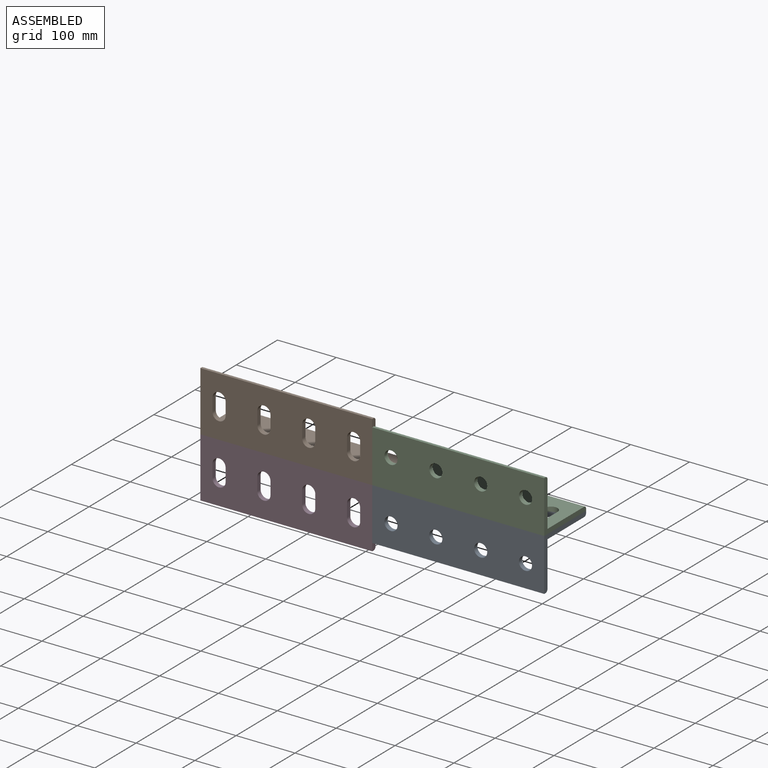
[diagram: assembled view]
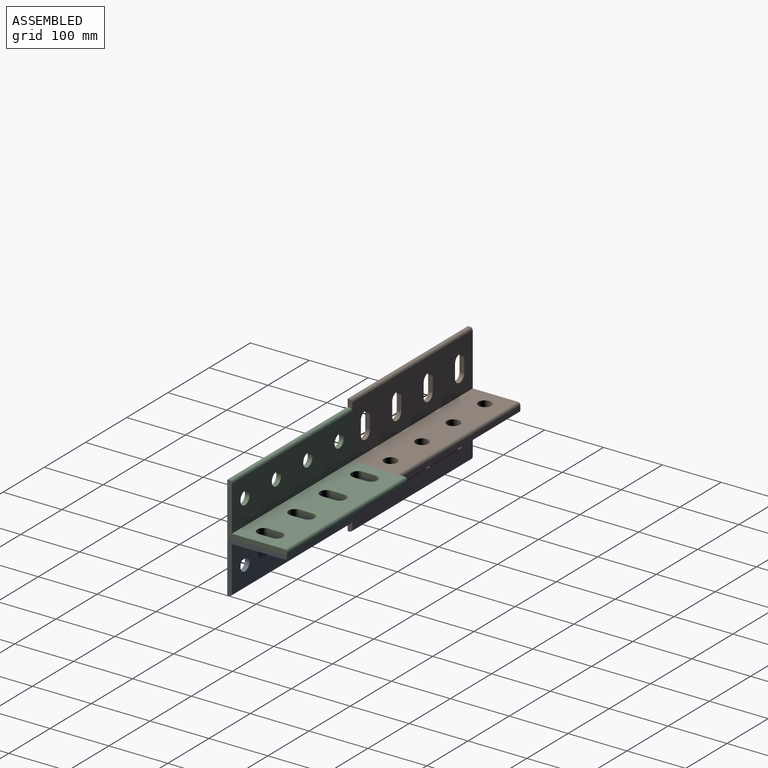
[diagram: assembled view, second angle]
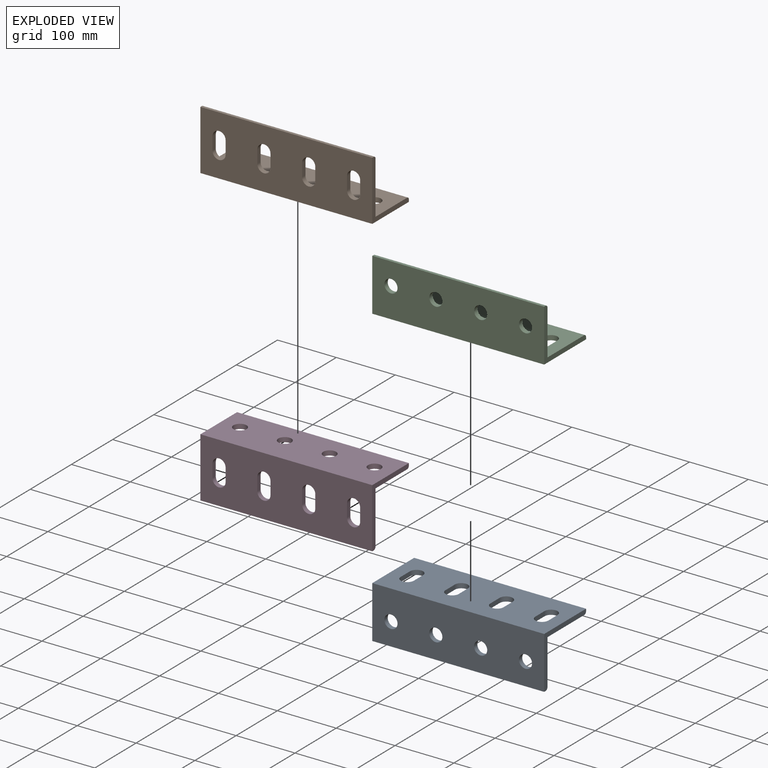
[diagram: exploded view]
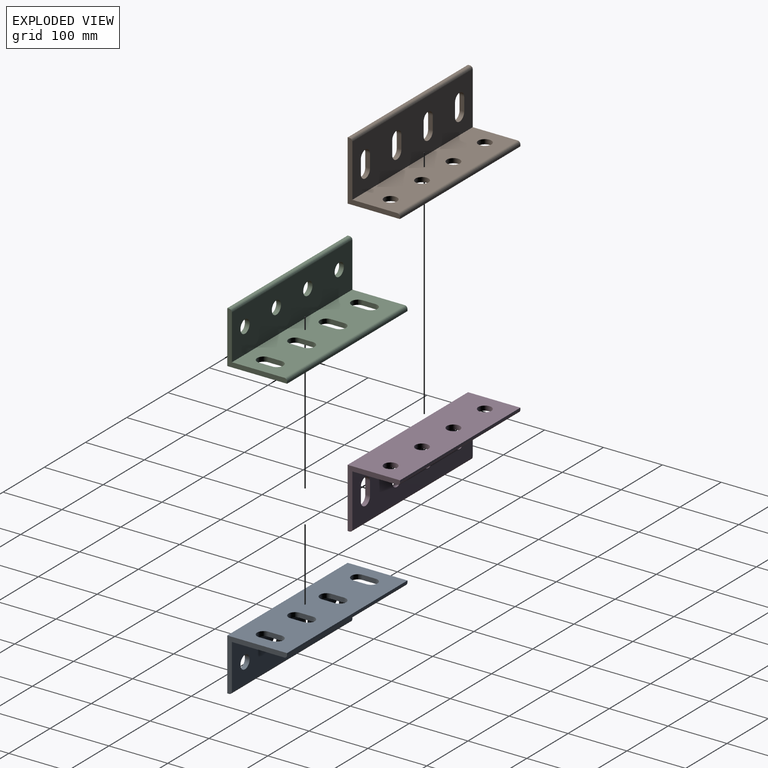
[diagram: exploded view, second angle]
ASSEMBLY  parts=4 mates=3
PART A: 30 faces, bbox 292.1x101.6x88.9 mm
  f0: plane 292.1x101.6mm, normal (0,0,1), area 26149.8mm2, adj f2,f5,f6,f7,f8,f9,f10,f11
  f1: plane 292.1x89.09mm, normal (0,0,-1), area 22495.7mm2, adj f4,f6,f7,f8,f9,f10,f11,f12
  f2: plane 292.1x88.9mm, normal (0,-1,0), area 24415.9mm2, adj f0,f3,f6,f7,f24,f25,f26,f27
  f3: plane 292.1x3.37mm, normal (0,0,-1), area 983.1mm2, adj f2,f6,f7,f28
  f4: plane 292.1x76.39mm, normal (0,1,0), area 20761.9mm2, adj f1,f6,f7,f24,f25,f26,f27,f28
  f5: plane 292.1x3.37mm, normal (0,1,0), area 983.1mm2, adj f0,f6,f7,f29
  f6: plane 101.6x88.9mm, normal (1,0,0), area 1440.1mm2, adj f0,f1,f2,f3,f4,f5,f28,f29
  f7: plane 101.6x88.9mm, normal (-1,0,0), area 1440.1mm2, adj f0,f1,f2,f3,f4,f5,f28,f29
  f8: plane 22.23x7.94mm, normal (-1,0,0), area 176.4mm2, adj f0,f1,f16,f17
  f9: plane 22.23x7.94mm, normal (1,0,0), area 176.4mm2, adj f0,f1,f16,f17
  f10: plane 22.23x7.94mm, normal (-1,0,0), area 176.4mm2, adj f0,f1,f18,f19
  f11: plane 22.23x7.94mm, normal (1,0,0), area 176.4mm2, adj f0,f1,f18,f19
  f12: plane 22.23x7.94mm, normal (-1,0,0), area 176.4mm2, adj f0,f1,f20,f21
  f13: plane 22.23x7.94mm, normal (1,0,0), area 176.4mm2, adj f0,f1,f20,f21
  f14: plane 22.23x7.94mm, normal (-1,0,0), area 176.4mm2, adj f0,f1,f22,f23
  f15: plane 22.23x7.94mm, normal (1,0,0), area 176.4mm2, adj f0,f1,f22,f23
  f16: cylinder r=11.11mm len=22.23mm, axis (0,0,1), area 277.1mm2, adj f0,f1,f8,f9
  f17: cylinder r=11.11mm len=22.23mm, axis (0,0,-1), area 277.1mm2, adj f0,f1,f8,f9
  f18: cylinder r=11.11mm len=22.23mm, axis (0,0,1), area 277.1mm2, adj f0,f1,f10,f11
  f19: cylinder r=11.11mm len=22.23mm, axis (0,0,-1), area 277.1mm2, adj f0,f1,f10,f11
  f20: cylinder r=11.11mm len=22.23mm, axis (0,0,-1), area 277.1mm2, adj f0,f1,f12,f13
  f21: cylinder r=11.11mm len=22.23mm, axis (0,0,1), area 277.1mm2, adj f0,f1,f12,f13
  f22: cylinder r=11.11mm len=22.23mm, axis (0,0,1), area 277.1mm2, adj f0,f1,f14,f15
  f23: cylinder r=11.11mm len=22.23mm, axis (0,0,-1), area 277.1mm2, adj f0,f1,f14,f15
  f24: cylinder r=11.11mm len=22.23mm, axis (0,-1,0), area 554.2mm2, adj f2,f4
  f25: cylinder r=11.11mm len=22.23mm, axis (0,-1,0), area 554.2mm2, adj f2,f4
  f26: cylinder r=11.11mm len=22.23mm, axis (0,-1,0), area 554.2mm2, adj f2,f4
  f27: cylinder r=11.11mm len=22.23mm, axis (0,-1,0), area 554.2mm2, adj f2,f4
  f28: cylinder r=4.57mm len=292.1mm, axis (-1,0,0), area 2097.8mm2, adj f3,f4,f6,f7
  f29: cylinder r=4.57mm len=292.1mm, axis (-1,0,0), area 2097.8mm2, adj f1,f5,f6,f7
PART B: same geometry as A
PART C: same geometry as A
PART D: same geometry as A
PLACE A t=(288.19,195.62,16.12)mm
PLACE B rot(axis=(1,0,0),90deg) t=(-3.91,189.59,106.71)mm
PLACE C rot(axis=(0,1,0),180deg) t=(580.29,195.62,100.68)mm
PLACE D rot(axis=(0,-0.71,0.71),180deg) t=(288.19,189.59,10.09)mm
MATE fastened A.f7 <-> D.f7  axis (-1,0,0) through (288.19,155.25,50.46)mm
MATE fastened C.f0 <-> A.f0  axis (0,0,-1) through (580.29,147.31,58.4)mm
MATE fastened D.f2 <-> B.f2  axis (0,0,1) through (288.19,147.31,58.4)mm
